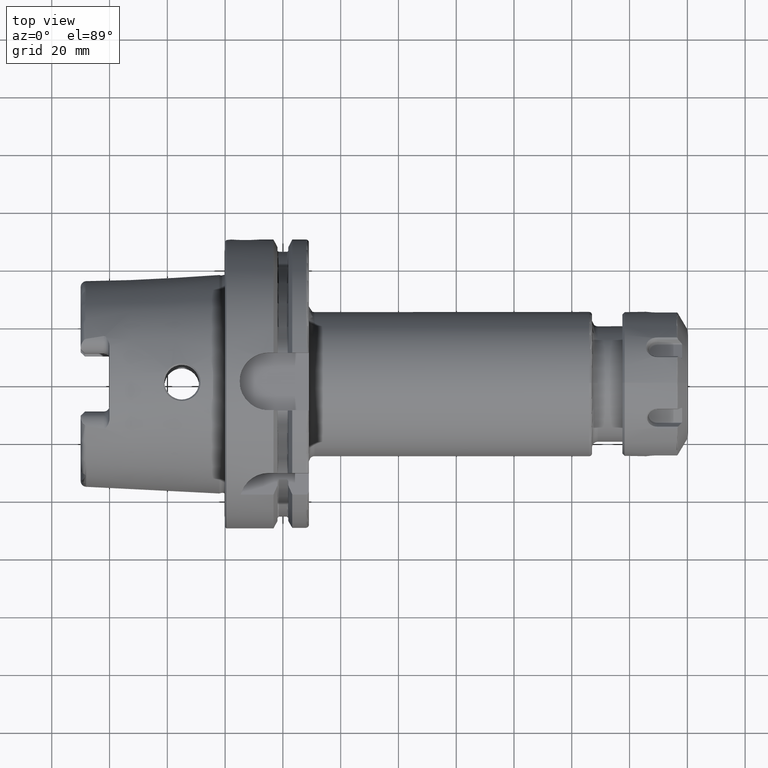
[diagram: clean part render]
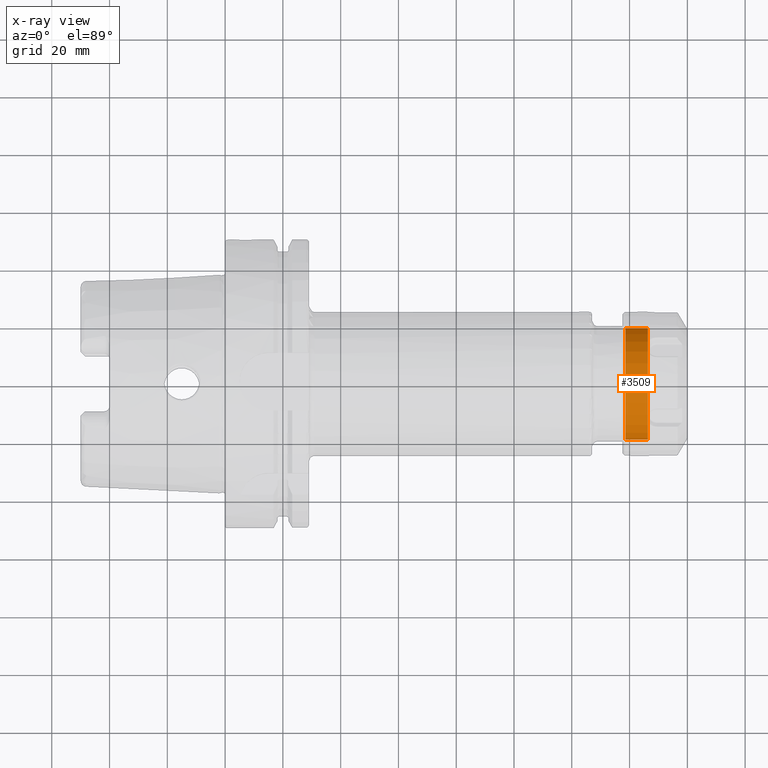
[diagram: x-ray — body ghosted, one internal face saturated and labeled with its STEP entity id]
A machine part, top view, then the same camera in x-ray: the body is ghosted and one INTERNAL B-rep face — a face not visible from any outside direction — is saturated and labeled: STEP entity #3509.
In plain terms, the highlighted cylindrical surface (bore or boss wall) has radius 19.3 mm, axis along (1, 0, 0).
Its self-contained STEP definition (entity closure, byte-faithful):
#545=FACE_OUTER_BOUND('',#764,.T.);
#764=EDGE_LOOP('',(#2929,#2930,#2931,#2932,#2933));
#954=LINE('',#6608,#1142);
#1142=VECTOR('',#4728,19.3);
#1366=CIRCLE('',#3937,19.3);
#1367=CIRCLE('',#3938,19.3);
#1368=CIRCLE('',#3940,19.3);
#1630=VERTEX_POINT('',#6601);
#1631=VERTEX_POINT('',#6603);
#1632=VERTEX_POINT('',#6607);
#2079=EDGE_CURVE('',#1630,#1631,#1366,.T.);
#2080=EDGE_CURVE('',#1631,#1630,#1367,.T.);
#2081=EDGE_CURVE('',#1631,#1632,#954,.T.);
#2082=EDGE_CURVE('',#1632,#1632,#1368,.T.);
#2929=ORIENTED_EDGE('',*,*,#2079,.F.);
#2930=ORIENTED_EDGE('',*,*,#2080,.F.);
#2931=ORIENTED_EDGE('',*,*,#2081,.T.);
#2932=ORIENTED_EDGE('',*,*,#2082,.F.);
#2933=ORIENTED_EDGE('',*,*,#2081,.F.);
#3367=CYLINDRICAL_SURFACE('',#3939,19.3);
#3509=ADVANCED_FACE('',(#545),#3367,.F.);
#3937=AXIS2_PLACEMENT_3D('',#6604,#4722,#4723);
#3938=AXIS2_PLACEMENT_3D('',#6605,#4724,#4725);
#3939=AXIS2_PLACEMENT_3D('',#6606,#4726,#4727);
#3940=AXIS2_PLACEMENT_3D('',#6609,#4729,#4730);
#4722=DIRECTION('center_axis',(1.,0.,0.));
#4723=DIRECTION('ref_axis',(0.,1.,0.));
#4724=DIRECTION('center_axis',(1.,0.,0.));
#4725=DIRECTION('ref_axis',(0.,1.,0.));
#4726=DIRECTION('center_axis',(1.,0.,0.));
#4727=DIRECTION('ref_axis',(0.,-1.,0.));
#4728=DIRECTION('',(1.,0.,0.));
#4729=DIRECTION('center_axis',(-1.,0.,0.));
#4730=DIRECTION('ref_axis',(0.,1.,0.));
#6601=CARTESIAN_POINT('',(-10.25,-19.2996618297511,0.114250852292867));
#6603=CARTESIAN_POINT('',(-10.25,19.3,2.36356832235439E-15));
#6604=CARTESIAN_POINT('Origin',(-10.25,0.,0.));
#6605=CARTESIAN_POINT('Origin',(-10.25,0.,0.));
#6606=CARTESIAN_POINT('Origin',(0.,0.,0.));
#6607=CARTESIAN_POINT('',(-2.39544826719,19.3,0.));
#6608=CARTESIAN_POINT('',(0.,19.3,2.36356832235439E-15));
#6609=CARTESIAN_POINT('Origin',(-2.39544826719,0.,0.));